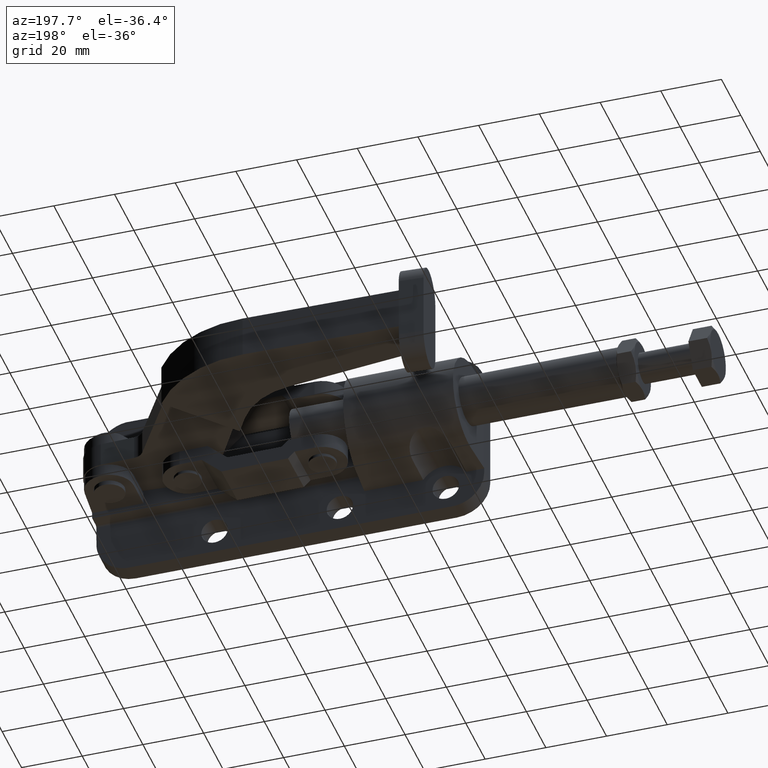
[diagram: clean part render]
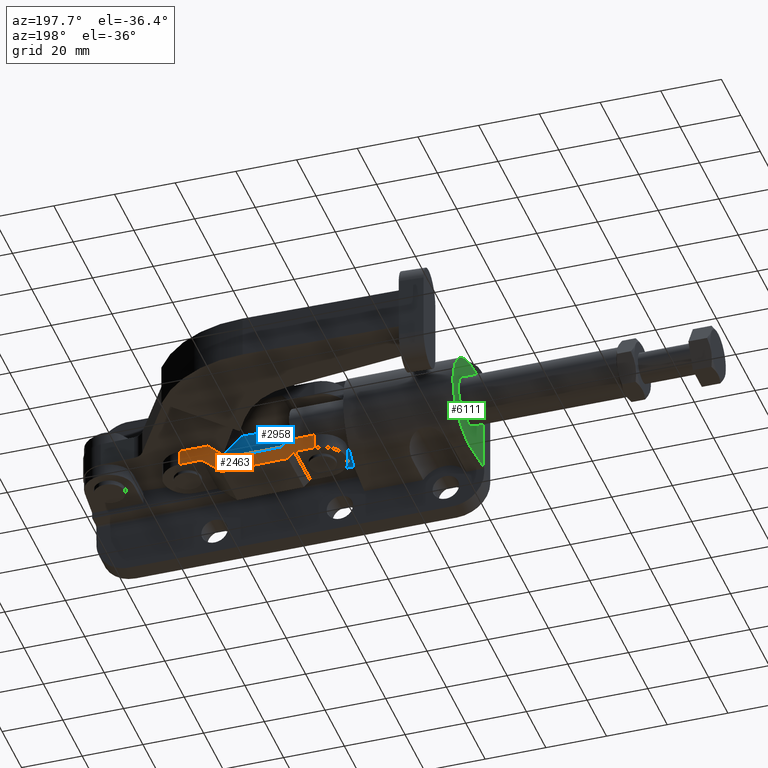
[diagram: same view with three faces highlighted in distinct colors, each labeled with its STEP entity id]
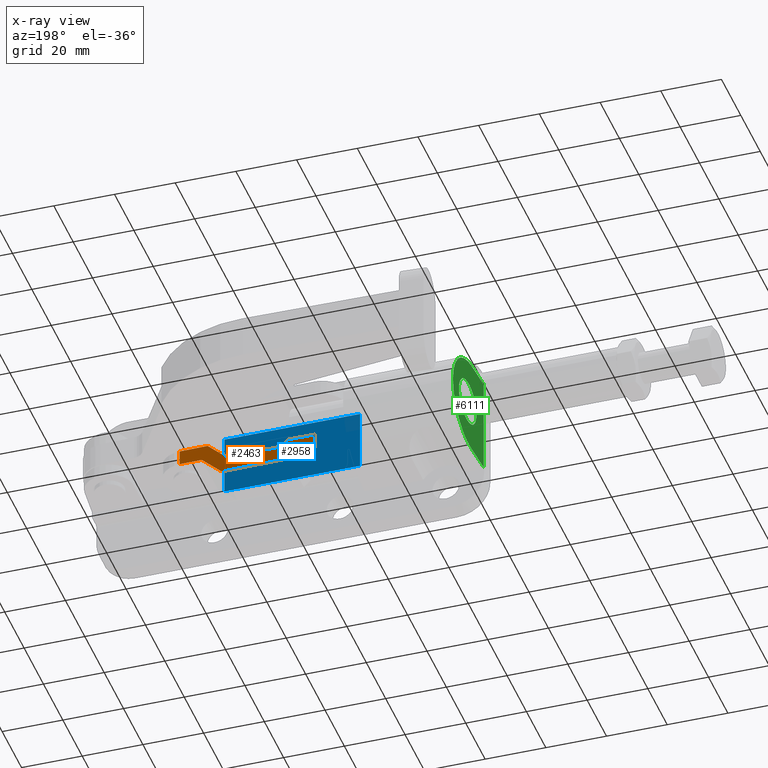
[diagram: x-ray of the same camera — body ghosted, the three highlighted faces saturated]
A machine part, auxiliary view with three faces highlighted in distinct colors.
The next image is the same camera in x-ray (body ghosted, the three faces saturated) — at least one of them is partly hidden behind the body in this view.
Their STEP definitions:

[orange] entity #2463 — the highlighted planar face has unit normal (0.0112, 0.9999, 0).
#81 = CARTESIAN_POINT ( 'NONE',  ( 93.39642722058270900, 28.09949725943503700, -4.000000000000019500 ) ) ;
#83 = ORIENTED_EDGE ( 'NONE', *, *, #4224, .F. ) ;
#151 = EDGE_CURVE ( 'NONE', #2413, #1264, #1322, .T. ) ;
#186 = CARTESIAN_POINT ( 'NONE',  ( 55.39881523826671400, 28.52550622804490000, -12.85000000000000900 ) ) ;
#289 = LINE ( 'NONE', #5051, #444 ) ;
#383 = CARTESIAN_POINT ( 'NONE',  ( 86.09688597134832800, 28.18133582445742700, -9.000000000000170500 ) ) ;
#384 = LINE ( 'NONE', #700, #2999 ) ;
#435 = DIRECTION ( 'NONE',  ( 0.9999371574293751700, -0.01121076233183788600, -1.278259554074327100E-017 ) ) ;
#444 = VECTOR ( 'NONE', #1949, 1000.000000000000000 ) ;
#466 = LINE ( 'NONE', #6762, #5689 ) ;
#497 = DIRECTION ( 'NONE',  ( -0.9999371574293751700, 0.01121076233183788600, -6.155123096821138200E-015 ) ) ;
#548 = CARTESIAN_POINT ( 'NONE',  ( 40.79973273979768300, 28.68918335808968900, -7.850000000000114200 ) ) ;
#556 = FACE_OUTER_BOUND ( 'NONE', #3947, .T. ) ;
#583 = VECTOR ( 'NONE', #804, 1000.000000000000100 ) ;
#601 = DIRECTION ( 'NONE',  ( 0.9999371574293751700, -0.01121076233183788600, -1.278259554074327100E-017 ) ) ;
#700 = CARTESIAN_POINT ( 'NONE',  ( 55.39881523826671400, 28.52550622804490000, -12.85000000000000900 ) ) ;
#783 = VERTEX_POINT ( 'NONE', #2156 ) ;
#784 = ORIENTED_EDGE ( 'NONE', *, *, #1282, .F. ) ;
#804 = DIRECTION ( 'NONE',  ( 0.7347572676901378300, -0.008237706778334833200, 0.6782801027330501700 ) ) ;
#951 = ORIENTED_EDGE ( 'NONE', *, *, #4566, .F. ) ;
#1109 = CARTESIAN_POINT ( 'NONE',  ( 93.39642722058270900, 28.09949725943503700, -9.000000000000170500 ) ) ;
#1212 = ORIENTED_EDGE ( 'NONE', *, *, #151, .T. ) ;
#1220 = DIRECTION ( 'NONE',  ( 0.7151422581987212400, -0.008017793748889572400, -0.6989329478010275500 ) ) ;
#1264 = VERTEX_POINT ( 'NONE', #1109 ) ;
#1282 = EDGE_CURVE ( 'NONE', #4019, #2175, #4047, .T. ) ;
#1322 = LINE ( 'NONE', #5670, #3919 ) ;
#1349 = VERTEX_POINT ( 'NONE', #6679 ) ;
#1420 = LINE ( 'NONE', #5138, #4013 ) ;
#1462 = EDGE_CURVE ( 'NONE', #2891, #1349, #5381, .T. ) ;
#1525 = LINE ( 'NONE', #548, #1693 ) ;
#1693 = VECTOR ( 'NONE', #3124, 1000.000000000000200 ) ;
#1709 = DIRECTION ( 'NONE',  ( 0.9999371574293752800, -0.01121076233183788800, -1.278259554074327300E-017 ) ) ;
#1764 = CARTESIAN_POINT ( 'NONE',  ( 57.59867698461113200, 28.50084255091486800, -14.99999999999994000 ) ) ;
#1949 = DIRECTION ( 'NONE',  ( -1.177620778339151100E-017, 8.983580016328703400E-017, -1.000000000000000000 ) ) ;
#2154 = VERTEX_POINT ( 'NONE', #186 ) ;
#2156 = CARTESIAN_POINT ( 'NONE',  ( 84.13449228481039200, 28.20333713629769800, -4.000000000000019500 ) ) ;
#2175 = VERTEX_POINT ( 'NONE', #2396 ) ;
#2194 = CARTESIAN_POINT ( 'NONE',  ( 59.63603192779054000, 28.47800081342776600, -9.999999999999939600 ) ) ;
#2266 = ORIENTED_EDGE ( 'NONE', *, *, #2699, .F. ) ;
#2292 = EDGE_CURVE ( 'NONE', #1349, #3890, #1525, .T. ) ;
#2396 = CARTESIAN_POINT ( 'NONE',  ( 79.59729444805729800, 28.25420577961443400, -14.99999999999993400 ) ) ;
#2413 = VERTEX_POINT ( 'NONE', #81 ) ;
#2463 = ADVANCED_FACE ( 'NONE', ( #556 ), #5882, .T. ) ;
#2632 = CARTESIAN_POINT ( 'NONE',  ( 57.43617018144608700, 28.50266449055780500, -7.850000000000021800 ) ) ;
#2683 = VERTEX_POINT ( 'NONE', #5628 ) ;
#2699 = EDGE_CURVE ( 'NONE', #2683, #2891, #466, .T. ) ;
#2701 = VECTOR ( 'NONE', #4848, 1000.000000000000200 ) ;
#2753 = CARTESIAN_POINT ( 'NONE',  ( 48.79922999923247300, 28.59949725943498300, -7.850000000000065400 ) ) ;
#2891 = VERTEX_POINT ( 'NONE', #2194 ) ;
#2988 = EDGE_CURVE ( 'NONE', #2154, #4019, #384, .T. ) ;
#2999 = VECTOR ( 'NONE', #1220, 1000.000000000000100 ) ;
#3022 = DIRECTION ( 'NONE',  ( -0.9999371574293751700, 0.01121076233183788600, 1.026284024264244900E-014 ) ) ;
#3124 = DIRECTION ( 'NONE',  ( -0.9999371574293751700, 0.01121076233183788600, -5.617580350205900600E-015 ) ) ;
#3169 = VERTEX_POINT ( 'NONE', #383 ) ;
#3316 = ORIENTED_EDGE ( 'NONE', *, *, #6238, .F. ) ;
#3415 = ORIENTED_EDGE ( 'NONE', *, *, #2292, .F. ) ;
#3526 = CARTESIAN_POINT ( 'NONE',  ( 84.13449228481039200, 28.20333713629769800, -4.000000000000019500 ) ) ;
#3711 = CARTESIAN_POINT ( 'NONE',  ( 40.79973273979767600, 28.68918335808971100, -12.85000000000000300 ) ) ;
#3763 = CARTESIAN_POINT ( 'NONE',  ( 48.79922999923247300, 28.59949725943500800, -12.85000000000000300 ) ) ;
#3772 = CARTESIAN_POINT ( 'NONE',  ( 68.37881274122968000, 28.37998141581803700, -18.54461821527162600 ) ) ;
#3890 = VERTEX_POINT ( 'NONE', #2753 ) ;
#3919 = VECTOR ( 'NONE', #5088, 1000.000000000000000 ) ;
#3947 = EDGE_LOOP ( 'NONE', ( #3415, #6163, #2266, #6611, #3316, #1212, #83, #5752, #784, #5659, #5246, #951 ) ) ;
#3968 = DIRECTION ( 'NONE',  ( -0.7151422581987211300, 0.008017793748889572400, 0.6989329478010275500 ) ) ;
#3972 = VECTOR ( 'NONE', #3968, 1000.000000000000200 ) ;
#4013 = VECTOR ( 'NONE', #5669, 1000.000000000000100 ) ;
#4019 = VERTEX_POINT ( 'NONE', #5480 ) ;
#4047 = LINE ( 'NONE', #1764, #2701 ) ;
#4059 = CARTESIAN_POINT ( 'NONE',  ( 86.09688597134832800, 28.18133582445742700, -9.000000000000170500 ) ) ;
#4064 = LINE ( 'NONE', #3526, #5147 ) ;
#4224 = EDGE_CURVE ( 'NONE', #3169, #1264, #6345, .T. ) ;
#4566 = EDGE_CURVE ( 'NONE', #3890, #5291, #289, .T. ) ;
#4814 = DIRECTION ( 'NONE',  ( 0.01121076233183788800, 0.9999371574293752800, 8.969813438404060400E-017 ) ) ;
#4848 = DIRECTION ( 'NONE',  ( 0.9999371574293751700, -0.01121076233183788600, -1.278259554074327100E-017 ) ) ;
#4895 = LINE ( 'NONE', #6553, #583 ) ;
#4927 = VECTOR ( 'NONE', #435, 1000.000000000000200 ) ;
#5051 = CARTESIAN_POINT ( 'NONE',  ( 48.79922999923246600, 28.59949725943497600, -4.000000000000019500 ) ) ;
#5088 = DIRECTION ( 'NONE',  ( -1.177620778339151100E-017, 8.983580016328703400E-017, -1.000000000000000000 ) ) ;
#5138 = CARTESIAN_POINT ( 'NONE',  ( 77.63490076151960300, 28.27620709145469000, -9.999999999999827700 ) ) ;
#5147 = VECTOR ( 'NONE', #3022, 1000.000000000000200 ) ;
#5246 = ORIENTED_EDGE ( 'NONE', *, *, #5794, .F. ) ;
#5291 = VERTEX_POINT ( 'NONE', #3763 ) ;
#5316 = VECTOR ( 'NONE', #601, 1000.000000000000200 ) ;
#5381 = LINE ( 'NONE', #2632, #3972 ) ;
#5480 = CARTESIAN_POINT ( 'NONE',  ( 57.59867698461113200, 28.50084255091486800, -14.99999999999994000 ) ) ;
#5628 = CARTESIAN_POINT ( 'NONE',  ( 77.63490076151960300, 28.27620709145469000, -9.999999999999827700 ) ) ;
#5659 = ORIENTED_EDGE ( 'NONE', *, *, #2988, .F. ) ;
#5669 = DIRECTION ( 'NONE',  ( -0.7347572676901312800, 0.008237706778334739600, -0.6782801027330573900 ) ) ;
#5670 = CARTESIAN_POINT ( 'NONE',  ( 93.39642722058270900, 28.09949725943503700, -4.000000000000019500 ) ) ;
#5689 = VECTOR ( 'NONE', #497, 1000.000000000000200 ) ;
#5752 = ORIENTED_EDGE ( 'NONE', *, *, #6087, .F. ) ;
#5794 = EDGE_CURVE ( 'NONE', #5291, #2154, #6564, .T. ) ;
#5882 = PLANE ( 'NONE',  #6613 ) ;
#6087 = EDGE_CURVE ( 'NONE', #2175, #3169, #4895, .T. ) ;
#6163 = ORIENTED_EDGE ( 'NONE', *, *, #1462, .F. ) ;
#6238 = EDGE_CURVE ( 'NONE', #2413, #783, #4064, .T. ) ;
#6345 = LINE ( 'NONE', #4059, #4927 ) ;
#6553 = CARTESIAN_POINT ( 'NONE',  ( 79.59729444805729800, 28.25420577961443400, -14.99999999999993400 ) ) ;
#6564 = LINE ( 'NONE', #3711, #5316 ) ;
#6593 = EDGE_CURVE ( 'NONE', #783, #2683, #1420, .T. ) ;
#6611 = ORIENTED_EDGE ( 'NONE', *, *, #6593, .F. ) ;
#6613 = AXIS2_PLACEMENT_3D ( 'NONE', #3772, #4814, #1709 ) ;
#6679 = CARTESIAN_POINT ( 'NONE',  ( 57.43617018144608700, 28.50266449055780500, -7.850000000000021800 ) ) ;
#6762 = CARTESIAN_POINT ( 'NONE',  ( 59.63603192779054000, 28.47800081342776600, -9.999999999999939600 ) ) ;

[blue] entity #2958 — the highlighted planar face has unit normal (-0, -1, -0).
#98 = DIRECTION ( 'NONE',  ( 1.000000000000000000, -1.399803499217967600E-016, 0.0000000000000000000 ) ) ;
#143 = LINE ( 'NONE', #895, #5517 ) ;
#345 = CARTESIAN_POINT ( 'NONE',  ( 39.20336129227018800, 11.60000000000000300, -10.05500000000000000 ) ) ;
#891 = VECTOR ( 'NONE', #98, 1000.000000000000000 ) ;
#895 = CARTESIAN_POINT ( 'NONE',  ( 39.20336129227018800, 11.60000000000000300, -16.15500000000000100 ) ) ;
#975 = VERTEX_POINT ( 'NONE', #345 ) ;
#1087 = EDGE_CURVE ( 'NONE', #5046, #6444, #6296, .T. ) ;
#1154 = EDGE_LOOP ( 'NONE', ( #6456, #3374, #5430, #3619 ) ) ;
#1729 = PLANE ( 'NONE',  #5624 ) ;
#2180 = EDGE_CURVE ( 'NONE', #6497, #6444, #6031, .T. ) ;
#2259 = CARTESIAN_POINT ( 'NONE',  ( 34.32951451554590200, 11.60000000000000300, -10.05500000000000000 ) ) ;
#2789 = DIRECTION ( 'NONE',  ( -1.399803499217967400E-016, -1.000000000000000000, -0.0000000000000000000 ) ) ;
#2803 = DIRECTION ( 'NONE',  ( -0.0000000000000000000, -0.0000000000000000000, 1.000000000000000000 ) ) ;
#2958 = ADVANCED_FACE ( 'NONE', ( #5775 ), #1729, .F. ) ;
#2979 = CARTESIAN_POINT ( 'NONE',  ( 83.89999999999997700, 11.59999999999999600, -10.05500000000000000 ) ) ;
#3182 = EDGE_CURVE ( 'NONE', #975, #5046, #143, .T. ) ;
#3374 = ORIENTED_EDGE ( 'NONE', *, *, #3182, .T. ) ;
#3619 = ORIENTED_EDGE ( 'NONE', *, *, #2180, .F. ) ;
#4313 = CARTESIAN_POINT ( 'NONE',  ( 34.32951451554590200, 11.60000000000000300, 10.05500000000000000 ) ) ;
#4607 = VECTOR ( 'NONE', #2803, 1000.000000000000000 ) ;
#4925 = CARTESIAN_POINT ( 'NONE',  ( 83.89999999999997700, 11.59999999999999600, -10.05500000000000000 ) ) ;
#5046 = VERTEX_POINT ( 'NONE', #5625 ) ;
#5058 = DIRECTION ( 'NONE',  ( 0.0000000000000000000, 0.0000000000000000000, 1.000000000000000000 ) ) ;
#5087 = EDGE_CURVE ( 'NONE', #975, #6497, #6581, .T. ) ;
#5143 = CARTESIAN_POINT ( 'NONE',  ( 34.32951451554590200, 11.60000000000000300, -10.05500000000000000 ) ) ;
#5430 = ORIENTED_EDGE ( 'NONE', *, *, #1087, .T. ) ;
#5499 = VECTOR ( 'NONE', #6182, 1000.000000000000000 ) ;
#5517 = VECTOR ( 'NONE', #5058, 1000.000000000000000 ) ;
#5624 = AXIS2_PLACEMENT_3D ( 'NONE', #2259, #2789, #6457 ) ;
#5625 = CARTESIAN_POINT ( 'NONE',  ( 39.20336129227018800, 11.60000000000000000, 10.05500000000000100 ) ) ;
#5775 = FACE_OUTER_BOUND ( 'NONE', #1154, .T. ) ;
#5971 = CARTESIAN_POINT ( 'NONE',  ( 83.89999999999997700, 11.59999999999999600, 10.05500000000000000 ) ) ;
#6031 = LINE ( 'NONE', #2979, #4607 ) ;
#6182 = DIRECTION ( 'NONE',  ( 1.000000000000000000, -1.399803499217967600E-016, 0.0000000000000000000 ) ) ;
#6296 = LINE ( 'NONE', #4313, #891 ) ;
#6444 = VERTEX_POINT ( 'NONE', #5971 ) ;
#6456 = ORIENTED_EDGE ( 'NONE', *, *, #5087, .F. ) ;
#6457 = DIRECTION ( 'NONE',  ( -1.000000000000000000, 1.399803499217967400E-016, 0.0000000000000000000 ) ) ;
#6497 = VERTEX_POINT ( 'NONE', #4925 ) ;
#6581 = LINE ( 'NONE', #5143, #5499 ) ;

[green] entity #6111 — the highlighted planar face has unit normal (0.998, -0.063, 0).
#25 = DIRECTION ( 'NONE',  ( -0.0000000000000000000, -0.0000000000000000000, 1.000000000000000000 ) ) ;
#277 = CARTESIAN_POINT ( 'NONE',  ( 0.0000000000000000000, 6.750000000000000000, -16.15500000000000100 ) ) ;
#287 =( BOUNDED_CURVE ( )  B_SPLINE_CURVE ( 3, ( #4642, #3620, #5199, #4128 ),
 .UNSPECIFIED., .F., .T. ) 
 B_SPLINE_CURVE_WITH_KNOTS ( ( 4, 4 ),
 ( 4.712388980384689700, 7.853981633974482800 ),
 .UNSPECIFIED. ) 
 CURVE ( )  GEOMETRIC_REPRESENTATION_ITEM ( )  RATIONAL_B_SPLINE_CURVE ( ( 1.000000000000000000, 0.3333333333333333700, 0.3333333333333333700, 1.000000000000000000 ) ) 
 REPRESENTATION_ITEM ( '' )  );
#314 = CARTESIAN_POINT ( 'NONE',  ( 1.676132435004827700, 33.29999999999999000, -16.15500000000000100 ) ) ;
#503 = EDGE_CURVE ( 'NONE', #3694, #618, #287, .T. ) ;
#618 = VERTEX_POINT ( 'NONE', #5881 ) ;
#644 = CARTESIAN_POINT ( 'NONE',  ( 0.0000000000000000000, 6.750000000000000000, -16.15500000000000100 ) ) ;
#727 = ORIENTED_EDGE ( 'NONE', *, *, #2604, .T. ) ;
#922 = VERTEX_POINT ( 'NONE', #5903 ) ;
#995 = EDGE_LOOP ( 'NONE', ( #3149, #3247 ) ) ;
#1175 = EDGE_CURVE ( 'NONE', #3864, #5503, #3497, .T. ) ;
#1241 = ORIENTED_EDGE ( 'NONE', *, *, #1175, .F. ) ;
#1326 = CARTESIAN_POINT ( 'NONE',  ( 0.6562484618408724900, 17.14499999999998200, -16.15500000000000100 ) ) ;
#1340 = DIRECTION ( 'NONE',  ( 0.9980131649879675500, -0.06300573395096639700, 0.0000000000000000000 ) ) ;
#1549 = CARTESIAN_POINT ( 'NONE',  ( 0.8743666374695612300, 20.60000000000000100, 7.500000000000000000 ) ) ;
#1623 = VECTOR ( 'NONE', #25, 1000.000000000000000 ) ;
#1684 = EDGE_CURVE ( 'NONE', #3864, #4911, #4371, .T. ) ;
#1977 = FACE_OUTER_BOUND ( 'NONE', #6117, .T. ) ;
#2029 = DIRECTION ( 'NONE',  ( 0.06300573395096636900, 0.9980131649879674400, 0.0000000000000000000 ) ) ;
#2055 = CARTESIAN_POINT ( 'NONE',  ( -0.07260083993429682100, 5.599999999999998800, -7.500000000000003600 ) ) ;
#2222 =( BOUNDED_CURVE ( )  B_SPLINE_CURVE ( 3, ( #4093, #2055, #6224, #3099 ),
 .UNSPECIFIED., .F., .T. ) 
 B_SPLINE_CURVE_WITH_KNOTS ( ( 4, 4 ),
 ( 1.570796326794896600, 4.712388980384689700 ),
 .UNSPECIFIED. ) 
 CURVE ( )  GEOMETRIC_REPRESENTATION_ITEM ( )  RATIONAL_B_SPLINE_CURVE ( ( 1.000000000000000000, 0.3333333333333333700, 0.3333333333333333700, 1.000000000000000000 ) ) 
 REPRESENTATION_ITEM ( '' )  );
#2412 = LINE ( 'NONE', #6170, #3617 ) ;
#2467 = CARTESIAN_POINT ( 'NONE',  ( 2.696016408168786100, 49.45499999999998400, 16.15500000000001200 ) ) ;
#2604 = EDGE_CURVE ( 'NONE', #922, #5503, #2813, .T. ) ;
#2813 =( BOUNDED_CURVE ( )  B_SPLINE_CURVE ( 3, ( #3987, #2467, #6653, #3503 ),
 .UNSPECIFIED., .F., .F. ) 
 B_SPLINE_CURVE_WITH_KNOTS ( ( 4, 4 ),
 ( 4.712388980384689700, 7.853981633974482800 ),
 .UNSPECIFIED. ) 
 CURVE ( )  GEOMETRIC_REPRESENTATION_ITEM ( )  RATIONAL_B_SPLINE_CURVE ( ( 1.000000000000000000, 0.3333333333333333700, 0.3333333333333333700, 1.000000000000000000 ) ) 
 REPRESENTATION_ITEM ( '' )  );
#2908 = PLANE ( 'NONE',  #5887 ) ;
#3003 = ORIENTED_EDGE ( 'NONE', *, *, #3634, .T. ) ;
#3099 = CARTESIAN_POINT ( 'NONE',  ( 0.8743666374695612300, 20.60000000000000100, 7.500000000000000000 ) ) ;
#3149 = ORIENTED_EDGE ( 'NONE', *, *, #503, .F. ) ;
#3189 = VECTOR ( 'NONE', #6136, 1000.000000000000100 ) ;
#3202 = FACE_BOUND ( 'NONE', #995, .T. ) ;
#3247 = ORIENTED_EDGE ( 'NONE', *, *, #6630, .F. ) ;
#3497 = LINE ( 'NONE', #3521, #3189 ) ;
#3503 = CARTESIAN_POINT ( 'NONE',  ( 0.6562484618408724900, 17.14499999999998200, -16.15500000000000100 ) ) ;
#3521 = CARTESIAN_POINT ( 'NONE',  ( 1.676132435004827700, 33.29999999999999000, -16.15500000000000100 ) ) ;
#3617 = VECTOR ( 'NONE', #2029, 1000.000000000000100 ) ;
#3620 = CARTESIAN_POINT ( 'NONE',  ( 1.821334114873419200, 35.60000000000000100, 7.500000000000006200 ) ) ;
#3634 = EDGE_CURVE ( 'NONE', #4911, #922, #2412, .T. ) ;
#3694 = VERTEX_POINT ( 'NONE', #1549 ) ;
#3724 = CARTESIAN_POINT ( 'NONE',  ( 0.0000000000000000000, 6.750000000000000000, 16.15500000000000100 ) ) ;
#3794 = ORIENTED_EDGE ( 'NONE', *, *, #1684, .T. ) ;
#3864 = VERTEX_POINT ( 'NONE', #644 ) ;
#3987 = CARTESIAN_POINT ( 'NONE',  ( 0.6562484618408724900, 17.14499999999998200, 16.15500000000000100 ) ) ;
#4093 = CARTESIAN_POINT ( 'NONE',  ( 0.8743666374695612300, 20.60000000000000100, -7.500000000000000000 ) ) ;
#4128 = CARTESIAN_POINT ( 'NONE',  ( 0.8743666374695612300, 20.60000000000000100, -7.500000000000000000 ) ) ;
#4371 = LINE ( 'NONE', #277, #1623 ) ;
#4642 = CARTESIAN_POINT ( 'NONE',  ( 0.8743666374695612300, 20.60000000000000100, 7.500000000000000000 ) ) ;
#4911 = VERTEX_POINT ( 'NONE', #3724 ) ;
#4979 = DIRECTION ( 'NONE',  ( -0.06300573395096638300, -0.9980131649879674400, -0.0000000000000000000 ) ) ;
#5199 = CARTESIAN_POINT ( 'NONE',  ( 1.821334114873419700, 35.60000000000000100, -7.500000000000000900 ) ) ;
#5503 = VERTEX_POINT ( 'NONE', #1326 ) ;
#5881 = CARTESIAN_POINT ( 'NONE',  ( 0.8743666374695612300, 20.60000000000000100, -7.500000000000000000 ) ) ;
#5887 = AXIS2_PLACEMENT_3D ( 'NONE', #314, #1340, #4979 ) ;
#5903 = CARTESIAN_POINT ( 'NONE',  ( 0.6562484618408724900, 17.14499999999998200, 16.15500000000000100 ) ) ;
#6111 = ADVANCED_FACE ( 'NONE', ( #1977, #3202 ), #2908, .F. ) ;
#6117 = EDGE_LOOP ( 'NONE', ( #3003, #727, #1241, #3794 ) ) ;
#6136 = DIRECTION ( 'NONE',  ( 0.06300573395096636900, 0.9980131649879674400, 0.0000000000000000000 ) ) ;
#6170 = CARTESIAN_POINT ( 'NONE',  ( 1.676132435004827700, 33.29999999999999000, 16.15500000000000100 ) ) ;
#6224 = CARTESIAN_POINT ( 'NONE',  ( -0.07260083993429694600, 5.599999999999998800, 7.500000000000000900 ) ) ;
#6630 = EDGE_CURVE ( 'NONE', #618, #3694, #2222, .T. ) ;
#6653 = CARTESIAN_POINT ( 'NONE',  ( 2.696016408168786500, 49.45499999999999100, -16.15500000000000100 ) ) ;